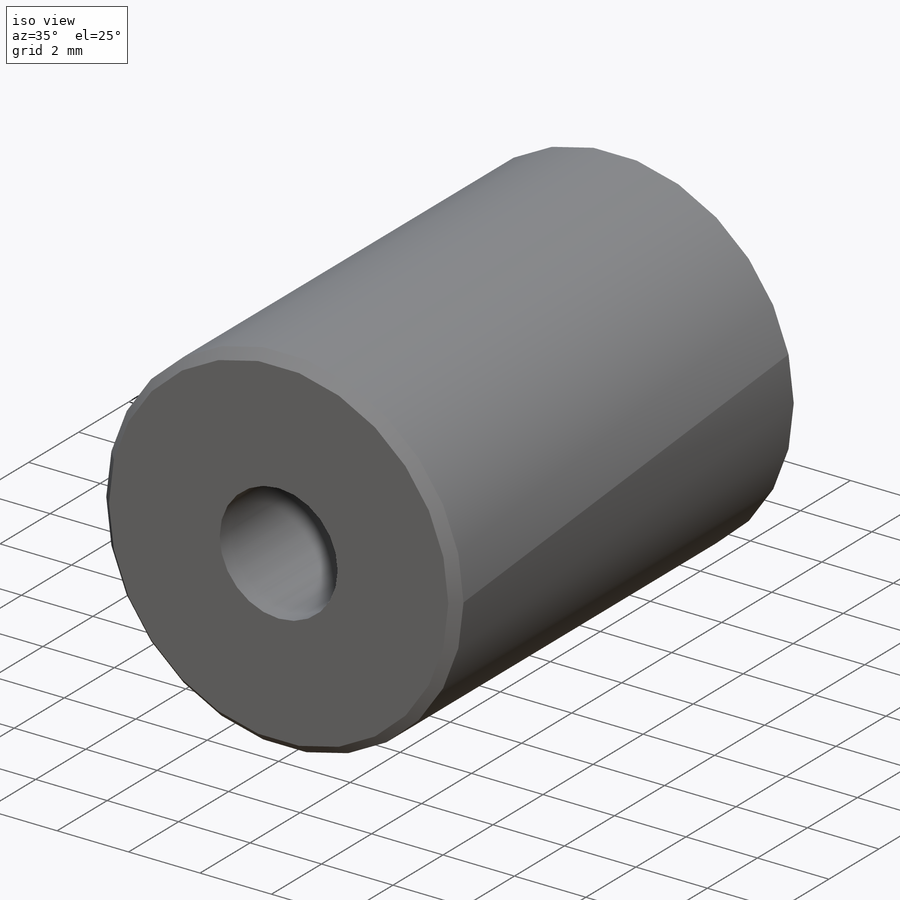
[diagram: iso view]
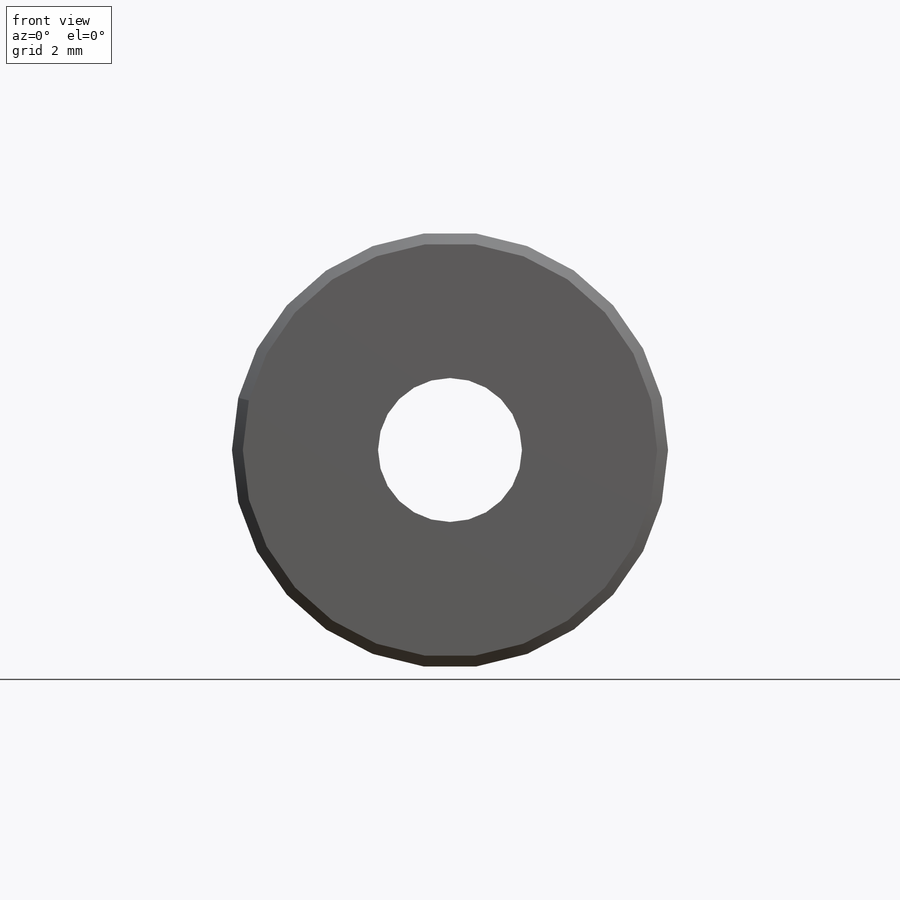
[diagram: front view]
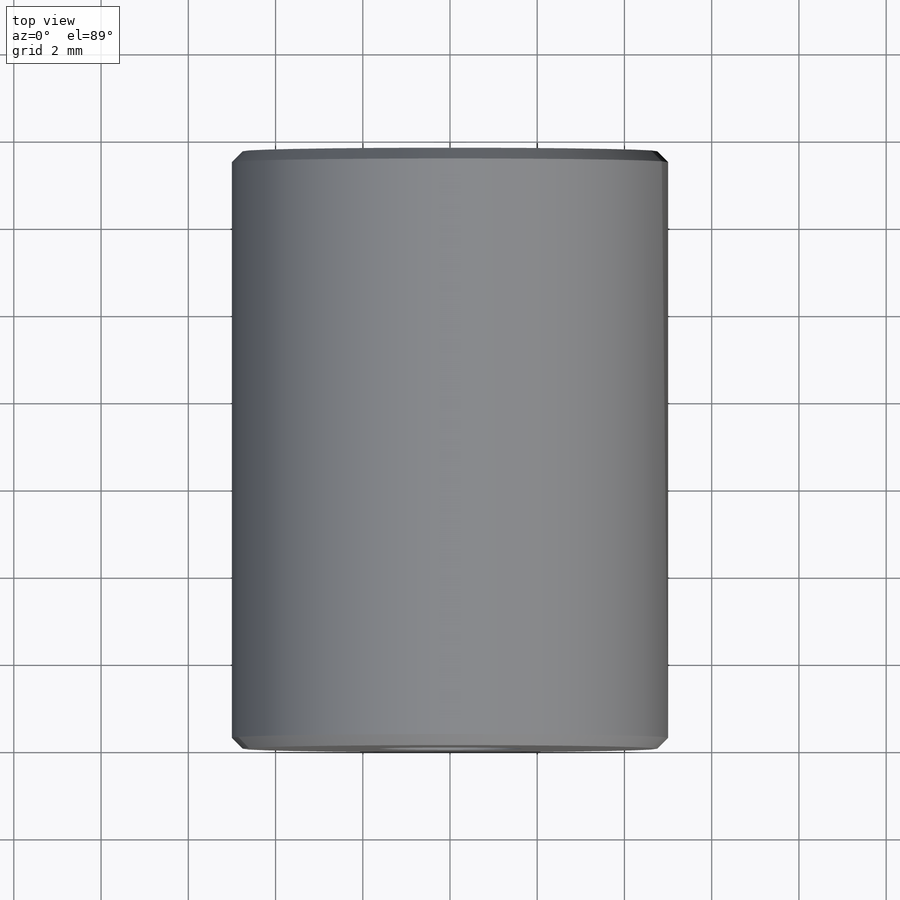
[diagram: top view]
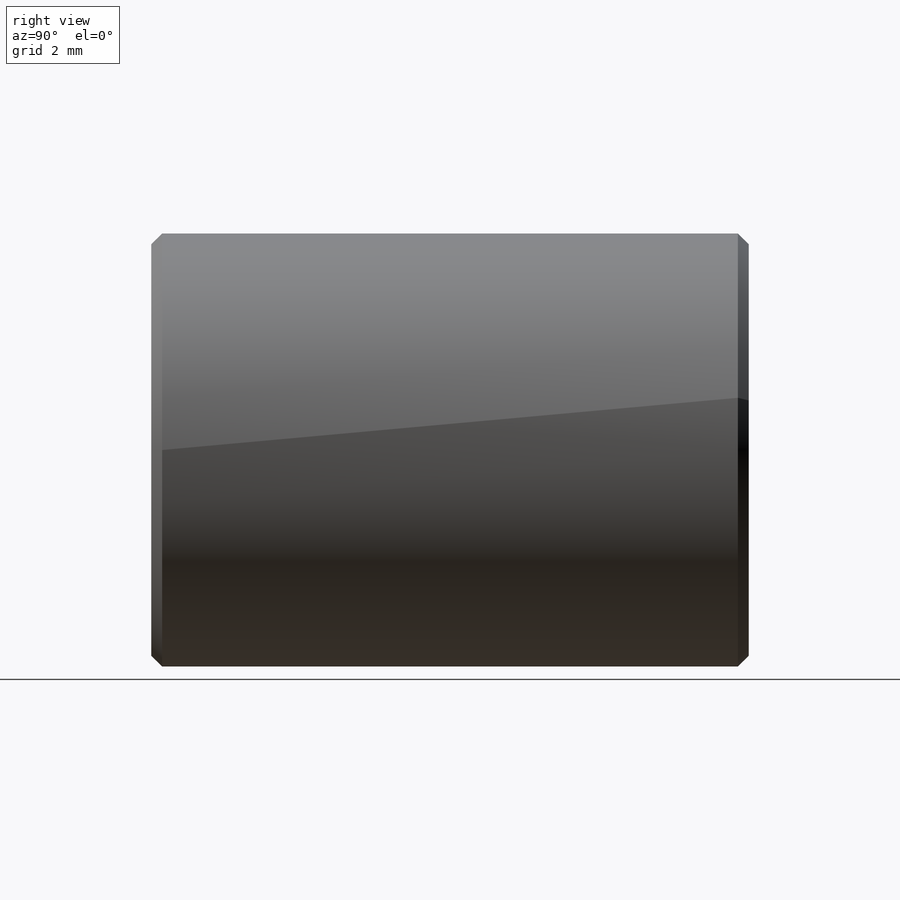
[diagram: right view]
SOLIDWORKS PART (.sldprt)
format: sldprt  version: not decoded by parser v0  size: 606,208 bytes
history: native  units: mm
features: sketch x5, hole x2, thread x2, material x1, extrude x1, chamfer x1 + 1 further entry (+12 scaffold rows collapsed)
feature tree (25):
  scaffold x12  (default folders/planes/origin — collapsed)
  material  "Material <not specified>"
  "Design Table"
  sketch  "Sketch1"  dims[c1.D1=~12.715144mm c1.D2=~12.715144mm c2.D1=~34.877251mm]
  extrude  "Extrude1"  [1 undecoded]
  hole  "M4x0.7 Tapped Hole1"  Diameter=3.3mm Depth=10mm
  sketch  "Sketch3"
  sketch  "Sketch2"  dims[hole-wizard template sketch: 50 standard entries collapsed; hole parameters above]
  thread  "Hole Thread1"  Diameter=8mm  [1 undecoded]
  hole  "M4x0.7 Tapped Hole2"  Diameter=3.3mm Depth=10mm
  sketch  "Sketch5"
  sketch  "Sketch4"  dims[hole-wizard template sketch: 50 standard entries collapsed; hole parameters above]
  thread  "Hole Thread2"  Diameter=0mm  [1 undecoded]
  chamfer  "Chamfer1"  Distance=0.25mm Angle=45deg
decode coverage: 8 of 11 modeling features carry decoded parameters; 1 rows unclassified (native names shown)
note: ~ marks probable driven/reference dimensions
note: 3 parameter values undecoded
note: suppression state not decoded; provenance and decode notes live in map.json
